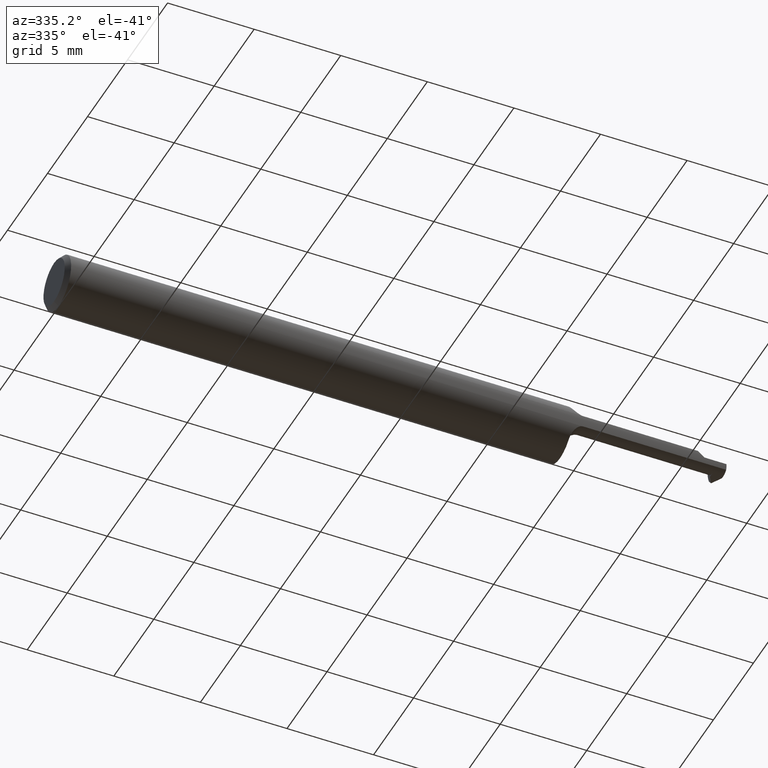
[diagram: clean part render]
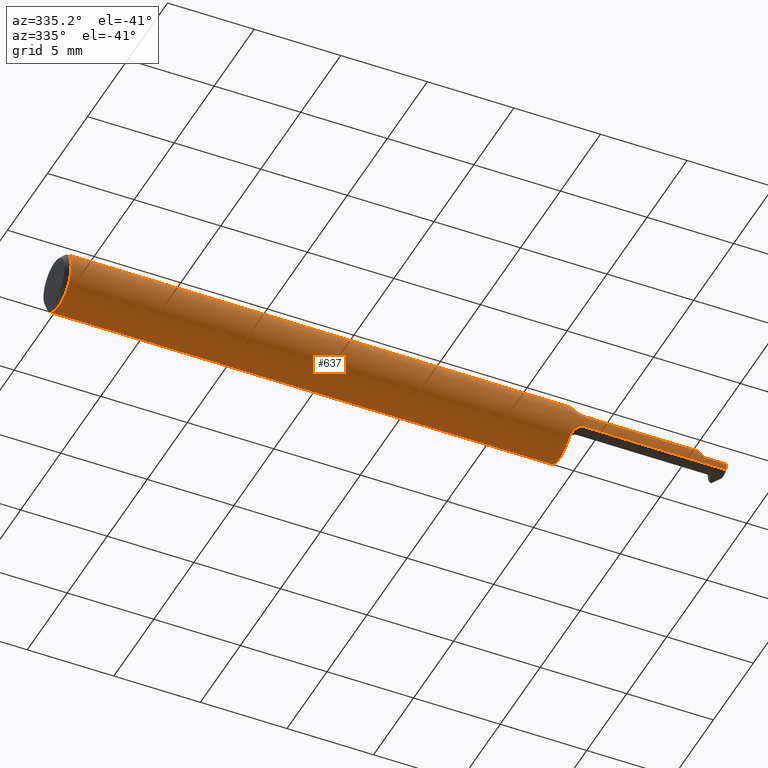
[diagram: same view with one face highlighted and labeled with its STEP entity id]
A machine part, auxiliary view. The second image highlights one B-rep face of the part: STEP entity #637.
In plain terms, the highlighted cylindrical surface (edge-blend (fillet) strip) has radius 1.5837 mm, axis along (-1, -0, -0).
Its self-contained STEP definition (entity closure, byte-faithful):
#3 = ORIENTED_EDGE ( 'NONE', *, *, #378, .T. ) ;
#13 = CARTESIAN_POINT ( 'NONE',  ( 1.450000000000000178, -0.06235000000000005121, 6.123233995736799470E-18 ) ) ;
#16 = AXIS2_PLACEMENT_3D ( 'NONE', #54, #379, #443 ) ;
#23 = CARTESIAN_POINT ( 'NONE',  ( 1.158379651799175791, -0.05768568243143085139, -0.02390912192702897288 ) ) ;
#24 = CARTESIAN_POINT ( 'NONE',  ( 1.435905470200741219, -0.06073604143947652911, 0.01409452979925863644 ) ) ;
#28 = AXIS2_PLACEMENT_3D ( 'NONE', #536, #436, #392 ) ;
#29 = AXIS2_PLACEMENT_3D ( 'NONE', #375, #432, #590 ) ;
#39 = DIRECTION ( 'NONE',  ( 1.000000000000000000, 2.651650034397991252E-17, 0.000000000000000000 ) ) ;
#54 = CARTESIAN_POINT ( 'NONE',  ( 1.500000000000000222, 0.000000000000000000, 0.000000000000000000 ) ) ;
#59 = ORIENTED_EDGE ( 'NONE', *, *, #720, .F. ) ;
#76 = AXIS2_PLACEMENT_3D ( 'NONE', #710, #606, #323 ) ;
#77 = VECTOR ( 'NONE', #134, 39.37007874015748143 ) ;
#78 = CARTESIAN_POINT ( 'NONE',  ( 1.160909952257189293, -0.05876722237226796736, 0.02098997094289236157 ) ) ;
#81 = LINE ( 'NONE', #310, #716 ) ;
#82 = CARTESIAN_POINT ( 'NONE',  ( 1.445250564478592015, -0.06235000000000000958, 0.004749435521407997275 ) ) ;
#88 = CARTESIAN_POINT ( 'NONE',  ( 1.170918043451032009, -0.06073604143947651524, -0.01409452979925870930 ) ) ;
#94 = DIRECTION ( 'NONE',  ( 1.000000000000000000, 0.000000000000000000, 0.000000000000000000 ) ) ;
#102 = LINE ( 'NONE', #655, #643 ) ;
#110 = B_SPLINE_CURVE_WITH_KNOTS ( 'NONE', 3,
 ( #199, #88, #305, #631, #23, #687, #195, #638 ),
 .UNSPECIFIED., .F., .F.,
 ( 4, 2, 2, 4 ),
 ( 1.967541529472493972E-07, 0.0003062111729972514249, 0.0006122255918415555687, 0.001224254429530158327 ),
 .UNSPECIFIED. ) ;
#118 = EDGE_CURVE ( 'NONE', #125, #559, #303, .T. ) ;
#120 = EDGE_CURVE ( 'NONE', #393, #125, #102, .T. ) ;
#125 = VERTEX_POINT ( 'NONE', #332 ) ;
#134 = DIRECTION ( 'NONE',  ( -1.000000000000000000, -2.651650034397991252E-17, -0.000000000000000000 ) ) ;
#136 = CIRCLE ( 'NONE', #16, 0.06235000000000000264 ) ;
#138 = VECTOR ( 'NONE', #274, 39.37007874015748143 ) ;
#156 = B_SPLINE_CURVE_WITH_KNOTS ( 'NONE', 3,
 ( #356, #418, #461, #681, #78, #367, #200, #581 ),
 .UNSPECIFIED., .F., .F.,
 ( 4, 2, 2, 4 ),
 ( 4.183662842068004843E-06, 0.0006133011813381103417, 0.0009178599405861313700, 0.001222418699834152507 ),
 .UNSPECIFIED. ) ;
#162 = CARTESIAN_POINT ( 'NONE',  ( 1.150000000000000355, -0.04274258451472191106, 0.04539376575039632405 ) ) ;
#167 = EDGE_CURVE ( 'NONE', #711, #652, #456, .T. ) ;
#172 = ORIENTED_EDGE ( 'NONE', *, *, #237, .T. ) ;
#175 = CIRCLE ( 'NONE', #588, 0.06235000000000000264 ) ;
#178 = VERTEX_POINT ( 'NONE', #218 ) ;
#179 = DIRECTION ( 'NONE',  ( 1.000000000000000000, 0.000000000000000000, 0.000000000000000000 ) ) ;
#180 = VERTEX_POINT ( 'NONE', #604 ) ;
#195 = CARTESIAN_POINT ( 'NONE',  ( 1.150000000000000133, -0.04862953753773308768, -0.03985063481687036585 ) ) ;
#199 = CARTESIAN_POINT ( 'NONE',  ( 1.175000000000000266, -0.06073604143947652911, -0.01409452979925869716 ) ) ;
#200 = CARTESIAN_POINT ( 'NONE',  ( 1.170918107686049092, -0.06073604143947840955, 0.01409452979925070008 ) ) ;
#208 = CARTESIAN_POINT ( 'NONE',  ( 0.000000000000000000, 0.03386738844375224849, 0.05234999999999997294 ) ) ;
#212 = CYLINDRICAL_SURFACE ( 'NONE', #29, 0.06235000000000000264 ) ;
#218 = CARTESIAN_POINT ( 'NONE',  ( 0.009999999999999887451, 0.000000000000000000, -0.06235000000000000264 ) ) ;
#227 = ORIENTED_EDGE ( 'NONE', *, *, #167, .F. ) ;
#237 = EDGE_CURVE ( 'NONE', #459, #452, #136, .T. ) ;
#245 = CARTESIAN_POINT ( 'NONE',  ( 0.009999999999999887451, 0.03386738844375224849, 0.05234999999999997294 ) ) ;
#270 = CARTESIAN_POINT ( 'NONE',  ( 1.323475710773593939, -0.06073604143947651524, 0.01409452979925868155 ) ) ;
#274 = DIRECTION ( 'NONE',  ( -1.000000000000000000, -0.000000000000000000, -0.000000000000000000 ) ) ;
#283 =( BOUNDED_CURVE ( )  B_SPLINE_CURVE ( 3, ( #531, #82, #311, #24 ),
 .UNSPECIFIED., .F., .F. ) 
 B_SPLINE_CURVE_WITH_KNOTS ( ( 4, 4 ),
 ( 4.712388980384689674, 4.940414924607587466 ),
 .UNSPECIFIED. ) 
 CURVE ( )  GEOMETRIC_REPRESENTATION_ITEM ( )  RATIONAL_B_SPLINE_CURVE ( ( 1.000000000000000000, 0.9956717057219215405, 0.9956717057219215405, 1.000000000000000000 ) ) 
 REPRESENTATION_ITEM ( '' )  );
#290 = DIRECTION ( 'NONE',  ( 0.000000000000000000, 0.000000000000000000, -1.000000000000000000 ) ) ;
#303 = CIRCLE ( 'NONE', #28, 0.06235000000000000264 ) ;
#305 = CARTESIAN_POINT ( 'NONE',  ( 1.167174290130400749, -0.06030086259927003312, -0.01605959189429562520 ) ) ;
#309 = ORIENTED_EDGE ( 'NONE', *, *, #511, .F. ) ;
#310 = CARTESIAN_POINT ( 'NONE',  ( 2.249639673992810223E-32, -0.06234999999999999570, 1.836970198721039302E-16 ) ) ;
#311 = CARTESIAN_POINT ( 'NONE',  ( 1.440531964389071051, -0.06180967512810753295, 0.009468035610928888721 ) ) ;
#314 = CARTESIAN_POINT ( 'NONE',  ( 1.500000000000000222, -0.06073604143947643891, -0.01409452979925867287 ) ) ;
#317 = DIRECTION ( 'NONE',  ( -1.000000000000000000, -0.000000000000000000, -0.000000000000000000 ) ) ;
#322 = FACE_OUTER_BOUND ( 'NONE', #698, .T. ) ;
#323 = DIRECTION ( 'NONE',  ( 0.000000000000000000, 1.000000000000000000, 0.000000000000000000 ) ) ;
#332 = CARTESIAN_POINT ( 'NONE',  ( 1.150000000000000355, -0.03386738844375224849, 0.05234999999999997294 ) ) ;
#333 = VERTEX_POINT ( 'NONE', #404 ) ;
#344 = CIRCLE ( 'NONE', #702, 0.06235000000000000264 ) ;
#348 = VERTEX_POINT ( 'NONE', #13 ) ;
#356 = CARTESIAN_POINT ( 'NONE',  ( 1.150000000000000355, -0.04274258451472191106, 0.04539376575039632405 ) ) ;
#359 = CARTESIAN_POINT ( 'NONE',  ( 1.150000000000000355, -0.04274258451472191106, -0.04539376575039632405 ) ) ;
#367 = CARTESIAN_POINT ( 'NONE',  ( 1.167156662623709762, -0.06029909404253414734, 0.01606812257809486083 ) ) ;
#375 = CARTESIAN_POINT ( 'NONE',  ( 0.000000000000000000, 0.000000000000000000, 0.000000000000000000 ) ) ;
#378 = EDGE_CURVE ( 'NONE', #178, #434, #175, .T. ) ;
#379 = DIRECTION ( 'NONE',  ( -1.000000000000000000, -0.000000000000000000, -0.000000000000000000 ) ) ;
#386 = VECTOR ( 'NONE', #39, 39.37007874015748143 ) ;
#387 = LINE ( 'NONE', #208, #138 ) ;
#392 = DIRECTION ( 'NONE',  ( 0.000000000000000000, 1.000000000000000000, 0.000000000000000000 ) ) ;
#393 = VERTEX_POINT ( 'NONE', #569 ) ;
#404 = CARTESIAN_POINT ( 'NONE',  ( 1.175000000000000266, -0.06073604143947652911, -0.01409452979925869716 ) ) ;
#414 = DIRECTION ( 'NONE',  ( 0.000000000000000000, 0.000000000000000000, -1.000000000000000000 ) ) ;
#418 = CARTESIAN_POINT ( 'NONE',  ( 1.150000000000000355, -0.04863025920668313101, 0.03984995529633316574 ) ) ;
#432 = DIRECTION ( 'NONE',  ( -1.000000000000000000, -0.000000000000000000, -0.000000000000000000 ) ) ;
#434 = VERTEX_POINT ( 'NONE', #245 ) ;
#436 = DIRECTION ( 'NONE',  ( 1.000000000000000000, 2.651650034397990944E-17, 0.000000000000000000 ) ) ;
#443 = DIRECTION ( 'NONE',  ( 0.000000000000000000, 0.000000000000000000, 1.000000000000000000 ) ) ;
#452 = VERTEX_POINT ( 'NONE', #521 ) ;
#455 = EDGE_CURVE ( 'NONE', #559, #180, #156, .T. ) ;
#456 = CIRCLE ( 'NONE', #76, 0.06235000000000000264 ) ;
#459 = VERTEX_POINT ( 'NONE', #314 ) ;
#461 = CARTESIAN_POINT ( 'NONE',  ( 1.152087078649324692, -0.05320835086854509149, 0.03322816149382794987 ) ) ;
#467 = EDGE_CURVE ( 'NONE', #393, #178, #344, .T. ) ;
#473 = LINE ( 'NONE', #639, #77 ) ;
#489 = LINE ( 'NONE', #270, #386 ) ;
#492 = ORIENTED_EDGE ( 'NONE', *, *, #558, .F. ) ;
#511 = EDGE_CURVE ( 'NONE', #459, #333, #473, .T. ) ;
#521 = CARTESIAN_POINT ( 'NONE',  ( 1.500000000000000222, -0.06235000000000000264, 0.000000000000000000 ) ) ;
#531 = CARTESIAN_POINT ( 'NONE',  ( 1.450000000000000178, -0.06235000000000005121, 6.123233995736799470E-18 ) ) ;
#533 = EDGE_CURVE ( 'NONE', #348, #633, #283, .T. ) ;
#536 = CARTESIAN_POINT ( 'NONE',  ( 1.150000000000000355, 0.000000000000000000, 0.000000000000000000 ) ) ;
#547 = ORIENTED_EDGE ( 'NONE', *, *, #705, .T. ) ;
#558 = EDGE_CURVE ( 'NONE', #652, #434, #387, .T. ) ;
#559 = VERTEX_POINT ( 'NONE', #162 ) ;
#560 = EDGE_CURVE ( 'NONE', #180, #633, #489, .T. ) ;
#569 = CARTESIAN_POINT ( 'NONE',  ( 0.009999999999999887451, -0.03386738844375224849, 0.05234999999999997294 ) ) ;
#578 = DIRECTION ( 'NONE',  ( 1.000000000000000000, 0.000000000000000000, 0.000000000000000000 ) ) ;
#579 = ORIENTED_EDGE ( 'NONE', *, *, #120, .F. ) ;
#581 = CARTESIAN_POINT ( 'NONE',  ( 1.175000000000000266, -0.06073604143947652911, 0.01409452979925869716 ) ) ;
#585 = CARTESIAN_POINT ( 'NONE',  ( 0.009999999999999887451, 0.000000000000000000, 0.000000000000000000 ) ) ;
#588 = AXIS2_PLACEMENT_3D ( 'NONE', #610, #179, #290 ) ;
#590 = DIRECTION ( 'NONE',  ( 0.000000000000000000, 0.000000000000000000, 1.000000000000000000 ) ) ;
#599 = ORIENTED_EDGE ( 'NONE', *, *, #467, .T. ) ;
#604 = CARTESIAN_POINT ( 'NONE',  ( 1.175000000000000266, -0.06073604143947652911, 0.01409452979925869716 ) ) ;
#606 = DIRECTION ( 'NONE',  ( 1.000000000000000000, 2.651650034397990944E-17, 0.000000000000000000 ) ) ;
#610 = CARTESIAN_POINT ( 'NONE',  ( 0.009999999999999887451, 0.000000000000000000, 0.000000000000000000 ) ) ;
#616 = ORIENTED_EDGE ( 'NONE', *, *, #560, .F. ) ;
#625 = ORIENTED_EDGE ( 'NONE', *, *, #533, .T. ) ;
#631 = CARTESIAN_POINT ( 'NONE',  ( 1.160942042317410383, -0.05877762567767846197, -0.02095937121485477381 ) ) ;
#633 = VERTEX_POINT ( 'NONE', #697 ) ;
#637 = ADVANCED_FACE ( 'NONE', ( #322 ), #212, .T. ) ;
#638 = CARTESIAN_POINT ( 'NONE',  ( 1.150000000000000355, -0.04274258451472191106, -0.04539376575039632405 ) ) ;
#639 = CARTESIAN_POINT ( 'NONE',  ( 1.323475710773593939, -0.06073604143947651524, -0.01409452979925868155 ) ) ;
#643 = VECTOR ( 'NONE', #94, 39.37007874015748143 ) ;
#650 = CARTESIAN_POINT ( 'NONE',  ( 1.150000000000000355, 0.03386738844375224849, 0.05234999999999997294 ) ) ;
#652 = VERTEX_POINT ( 'NONE', #650 ) ;
#655 = CARTESIAN_POINT ( 'NONE',  ( 0.000000000000000000, -0.03386738844375224849, 0.05234999999999997294 ) ) ;
#675 = ORIENTED_EDGE ( 'NONE', *, *, #455, .F. ) ;
#681 = CARTESIAN_POINT ( 'NONE',  ( 1.158393315188583905, -0.05769563112685624495, 0.02388861346910417516 ) ) ;
#686 = ORIENTED_EDGE ( 'NONE', *, *, #118, .F. ) ;
#687 = CARTESIAN_POINT ( 'NONE',  ( 1.152117253329444146, -0.05323027456427583542, -0.03318292701701414105 ) ) ;
#697 = CARTESIAN_POINT ( 'NONE',  ( 1.435905470200741219, -0.06073604143947652911, 0.01409452979925863644 ) ) ;
#698 = EDGE_LOOP ( 'NONE', ( #309, #172, #547, #625, #616, #675, #686, #579, #599, #3, #492, #227, #59 ) ) ;
#702 = AXIS2_PLACEMENT_3D ( 'NONE', #585, #578, #414 ) ;
#705 = EDGE_CURVE ( 'NONE', #452, #348, #81, .T. ) ;
#710 = CARTESIAN_POINT ( 'NONE',  ( 1.150000000000000355, 0.000000000000000000, 0.000000000000000000 ) ) ;
#711 = VERTEX_POINT ( 'NONE', #359 ) ;
#716 = VECTOR ( 'NONE', #317, 39.37007874015748143 ) ;
#720 = EDGE_CURVE ( 'NONE', #333, #711, #110, .T. ) ;